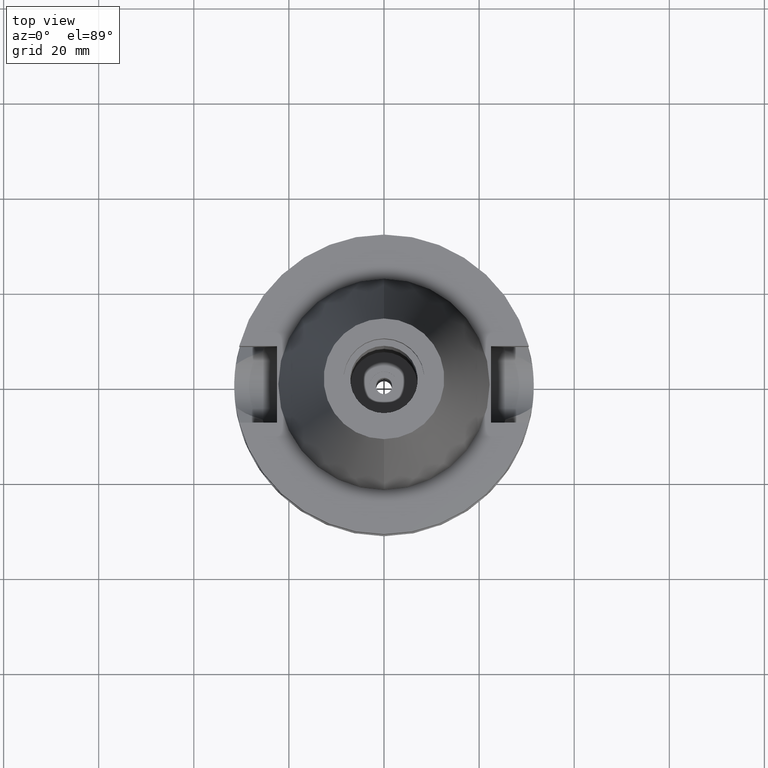
[diagram: clean part render]
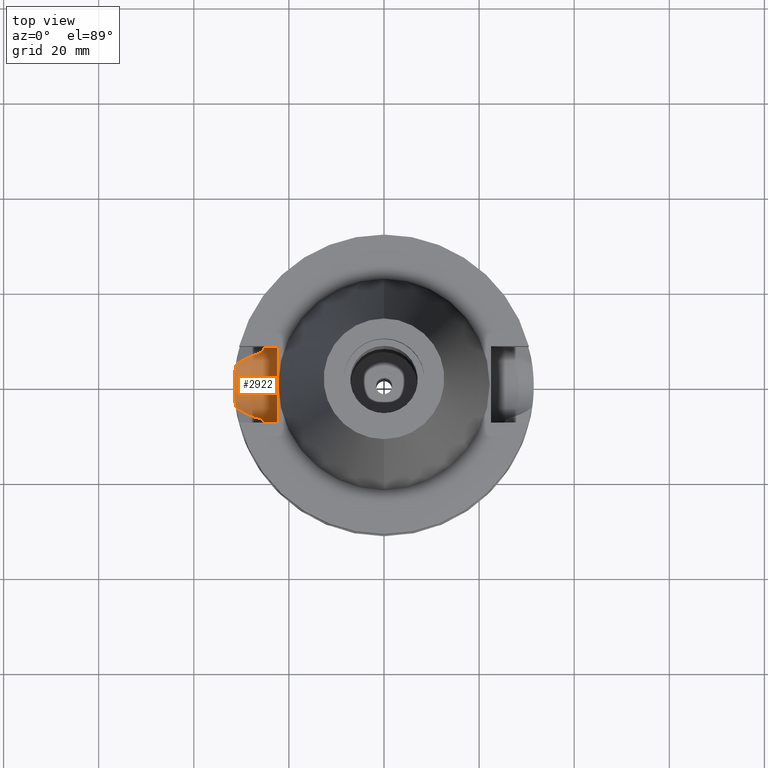
[diagram: same view with one face highlighted and labeled with its STEP entity id]
A machine part, top view. The second image highlights one B-rep face of the part: STEP entity #2922.
In plain terms, the highlighted cylindrical surface (partial cylindrical patch) has radius 8.05 mm, axis along (-1, 0, 0).
Its self-contained STEP definition (entity closure, byte-faithful):
#59 = CARTESIAN_POINT ( 'NONE',  ( -25.43785506100059379, 7.435618734365219140, -18.11648669958635693 ) ) ;
#126 = CARTESIAN_POINT ( 'NONE',  ( -31.17899877608999759, 4.485536235554000051, -21.63449434733000132 ) ) ;
#201 = CYLINDRICAL_SURFACE ( 'NONE', #2626, 8.050000000000000711 ) ;
#253 = CARTESIAN_POINT ( 'NONE',  ( -25.35407699156058570, -7.708962562372580152, -17.26964265289514344 ) ) ;
#286 = CARTESIAN_POINT ( 'NONE',  ( -25.28048191953834234, 7.947027004681899598, -16.24409354915845327 ) ) ;
#298 = EDGE_CURVE ( 'NONE', #2002, #773, #758, .T. ) ;
#338 = CARTESIAN_POINT ( 'NONE',  ( -31.41895388234278030, -2.258557297392488561, -22.67674196858702373 ) ) ;
#348 = VERTEX_POINT ( 'NONE', #1624 ) ;
#369 = CARTESIAN_POINT ( 'NONE',  ( -31.17899877608999759, -4.485536235554000051, -21.63449434733000132 ) ) ;
#388 = CARTESIAN_POINT ( 'NONE',  ( -31.28475554409357429, -3.750420082858365145, -22.12778373751357108 ) ) ;
#398 = CARTESIAN_POINT ( 'NONE',  ( -26.77112999246767089, 6.727844636446459248, -19.38408948532941523 ) ) ;
#409 = CARTESIAN_POINT ( 'NONE',  ( -25.27267878703948156, -7.973310748594792940, -16.24511349491563195 ) ) ;
#410 = EDGE_CURVE ( 'NONE', #348, #543, #1621, .T. ) ;
#440 = CARTESIAN_POINT ( 'NONE',  ( -25.48480250143031967, -7.266743887089764264, -18.43210847756382620 ) ) ;
#458 = EDGE_CURVE ( 'NONE', #1525, #1538, #942, .T. ) ;
#491 = EDGE_LOOP ( 'NONE', ( #2022, #594, #2235, #1987, #1033, #2475, #2879, #499 ) ) ;
#494 = CARTESIAN_POINT ( 'NONE',  ( -22.50000000000000000, -8.050000000000000711, -14.94999999999999929 ) ) ;
#499 = ORIENTED_EDGE ( 'NONE', *, *, #2439, .T. ) ;
#541 = CARTESIAN_POINT ( 'NONE',  ( -31.41630068311782864, -2.294990303378269036, -22.66593676115086708 ) ) ;
#543 = VERTEX_POINT ( 'NONE', #2399 ) ;
#561 = CARTESIAN_POINT ( 'NONE',  ( -27.60223315855615311, 6.420112284713082040, -19.80955697627818068 ) ) ;
#578 = CARTESIAN_POINT ( 'NONE',  ( -31.36267722272215153, -3.014176567370535409, -22.44730567392890563 ) ) ;
#594 = ORIENTED_EDGE ( 'NONE', *, *, #298, .F. ) ;
#621 = CARTESIAN_POINT ( 'NONE',  ( -29.75956350779681614, 5.446258309254174534, -20.91153942557181722 ) ) ;
#633 = CARTESIAN_POINT ( 'NONE',  ( -25.34383784690667696, -7.742464100974354224, -17.15621186859764791 ) ) ;
#698 = CARTESIAN_POINT ( 'NONE',  ( -25.39160756133994923, -7.584934398586919535, -17.65162641215484385 ) ) ;
#701 = CARTESIAN_POINT ( 'NONE',  ( -28.88524288976436694, -5.864049789222075759, -20.46505538983537420 ) ) ;
#716 = CARTESIAN_POINT ( 'NONE',  ( -28.91242282909650996, -5.850962886096426452, -20.47893493730233061 ) ) ;
#729 = VERTEX_POINT ( 'NONE', #853 ) ;
#743 = CARTESIAN_POINT ( 'NONE',  ( -25.31202244740001461, 7.845715351188225384, -16.75285925644253382 ) ) ;
#758 = LINE ( 'NONE', #494, #1226 ) ;
#773 = VERTEX_POINT ( 'NONE', #1082 ) ;
#783 = CARTESIAN_POINT ( 'NONE',  ( -31.43649054899053752, -2.003082981858939071, -22.74794518897322959 ) ) ;
#800 = CARTESIAN_POINT ( 'NONE',  ( -28.82793328317605841, 5.891435027629238874, -20.43578919949460015 ) ) ;
#802 = CARTESIAN_POINT ( 'NONE',  ( -31.46164955142647557, -1.563742733635596682, -22.84919402122184451 ) ) ;
#826 = B_SPLINE_CURVE_WITH_KNOTS ( 'NONE', 3,
 ( #2863, #2403, #398, #561, #1254, #1300, #2905, #841, #827, #2184, #800, #621, #1707, #2880 ),
 .UNSPECIFIED., .F., .F.,
 ( 4, 2, 2, 1, 1, 2, 2, 4 ),
 ( 0.0000000000000000000, 0.2499999999999975020, 0.3749999999999953926, 0.4374999999999942268, 0.4687499999999940603, 0.4843749999999936717, 0.4999999999999932832, 1.000000000000000000 ),
 .UNSPECIFIED. ) ;
#827 = CARTESIAN_POINT ( 'NONE',  ( -28.73866631008889172, 5.933555885267105090, -20.39020535222334374 ) ) ;
#841 = CARTESIAN_POINT ( 'NONE',  ( -28.64964551353900291, 5.975128190573732567, -20.34474781795773168 ) ) ;
#842 = CARTESIAN_POINT ( 'NONE',  ( -31.41200430603704419, 2.353176799736203417, -22.64842219027119796 ) ) ;
#853 = CARTESIAN_POINT ( 'NONE',  ( -22.50000000000000000, 8.050000000000000711, -14.94999999999999929 ) ) ;
#855 = DIRECTION ( 'NONE',  ( 1.000000000000000000, 1.551559937893000172E-14, -3.878899844733000253E-14 ) ) ;
#870 = CARTESIAN_POINT ( 'NONE',  ( -28.96838395272100897, -5.823826998887904338, -20.50751089269507332 ) ) ;
#900 = CARTESIAN_POINT ( 'NONE',  ( -25.32840181445836336, -7.792653841590518660, -16.96926092298874877 ) ) ;
#929 = CARTESIAN_POINT ( 'NONE',  ( -30.50155190454348286, -4.970400189524918133, -21.28962493449650495 ) ) ;
#942 = B_SPLINE_CURVE_WITH_KNOTS ( 'NONE', 3,
 ( #126, #2907, #2387, #1227, #2652, #1512, #998, #1255, #1042, #2667, #842, #1476, #1487, #2864, #2609, #2849, #802, #2187, #783, #1980, #338, #541, #1012, #2638, #578, #388, #369 ),
 .UNSPECIFIED., .F., .F.,
 ( 4, 2, 2, 1, 1, 2, 2, 2, 2, 2, 1, 1, 1, 2, 2, 4 ),
 ( 0.0000000000000000000, 0.1249999999999950040, 0.1874999999999926170, 0.2187499999999914235, 0.2343749999999908962, 0.2421874999999908684, 0.2499999999999908407, 0.4999999999999911182, 0.6249999999999912292, 0.6874999999999912292, 0.7187499999999912292, 0.7343749999999912292, 0.7421874999999913403, 0.7460937499999912292, 0.7499999999999912292, 1.000000000000000000 ),
 .UNSPECIFIED. ) ;
#998 = CARTESIAN_POINT ( 'NONE',  ( -31.39031131250037632, 2.628187298177331321, -22.55983422596495558 ) ) ;
#1012 = CARTESIAN_POINT ( 'NONE',  ( -31.41451779209811335, -2.319272271068230307, -22.65867282528799365 ) ) ;
#1033 = ORIENTED_EDGE ( 'NONE', *, *, #410, .T. ) ;
#1042 = CARTESIAN_POINT ( 'NONE',  ( -31.40736225804058179, 2.414206323995708114, -22.62949227797459528 ) ) ;
#1082 = CARTESIAN_POINT ( 'NONE',  ( -25.24772266958000344, -8.050000000000000711, -14.94999999999999929 ) ) ;
#1086 = CARTESIAN_POINT ( 'NONE',  ( -22.50000000000000000, 1.807578675540999863E-14, -14.94999999999999929 ) ) ;
#1151 = CARTESIAN_POINT ( 'NONE',  ( -27.92297817181045616, -6.323860996111284827, -19.97365869979384456 ) ) ;
#1154 = CARTESIAN_POINT ( 'NONE',  ( -25.31950540107353120, 7.821502334283406022, -16.85447843441894022 ) ) ;
#1181 = B_SPLINE_CURVE_WITH_KNOTS ( 'NONE', 3,
 ( #1555, #440, #1350, #698, #2042, #253, #633, #2473, #900, #1804, #2519, #409, #2060, #2747 ),
 .UNSPECIFIED., .F., .F.,
 ( 4, 2, 2, 1, 1, 2, 2, 4 ),
 ( 0.0000000000000000000, 0.2499999999999841238, 0.3749999999999763522, 0.4374999999999725775, 0.4687499999999721889, 0.4843749999999718558, 0.4999999999999715783, 1.000000000000000000 ),
 .UNSPECIFIED. ) ;
#1197 = CARTESIAN_POINT ( 'NONE',  ( -25.25396252671492547, 8.030902051885153270, -15.59367622151629718 ) ) ;
#1207 = AXIS2_PLACEMENT_3D ( 'NONE', #1533, #1493, #2693 ) ;
#1226 = VECTOR ( 'NONE', #2558, 1000.000000000000000 ) ;
#1227 = CARTESIAN_POINT ( 'NONE',  ( -31.33707847192020068, 3.201445230599945457, -22.33871180517444444 ) ) ;
#1254 = CARTESIAN_POINT ( 'NONE',  ( -27.86833083059124405, 6.314653008624818042, -19.94562304237988215 ) ) ;
#1255 = CARTESIAN_POINT ( 'NONE',  ( -31.40242035844687507, 2.478036592740717747, -22.60933024864149843 ) ) ;
#1262 = EDGE_CURVE ( 'NONE', #2002, #729, #2764, .T. ) ;
#1300 = CARTESIAN_POINT ( 'NONE',  ( -28.25107226365223312, 6.153143549582654970, -20.14119181965494221 ) ) ;
#1317 = DIRECTION ( 'NONE',  ( 0.0000000000000000000, 0.0000000000000000000, -1.000000000000000000 ) ) ;
#1338 = CARTESIAN_POINT ( 'NONE',  ( -29.24427992715143887, -5.686977808534088297, -20.64837969820500874 ) ) ;
#1350 = CARTESIAN_POINT ( 'NONE',  ( -25.44389776528783997, -7.408340107185043877, -18.11686868422951591 ) ) ;
#1389 = CARTESIAN_POINT ( 'NONE',  ( -25.31648297027380679, 7.831286608423163820, -16.81383661545202557 ) ) ;
#1434 = CARTESIAN_POINT ( 'NONE',  ( -25.53175183775000079, 7.097862220092999941, -18.74774300138999905 ) ) ;
#1476 = CARTESIAN_POINT ( 'NONE',  ( -31.47150441655300313, 1.550750679856411018, -22.89093377991047973 ) ) ;
#1487 = CARTESIAN_POINT ( 'NONE',  ( -31.50023391467116696, 0.7573065430390963915, -23.00092412718315771 ) ) ;
#1493 = DIRECTION ( 'NONE',  ( 1.000000000000000000, 0.0000000000000000000, 0.0000000000000000000 ) ) ;
#1512 = CARTESIAN_POINT ( 'NONE',  ( -31.37894136415564361, 2.758863631449552045, -22.51306821944813308 ) ) ;
#1525 = VERTEX_POINT ( 'NONE', #2054 ) ;
#1533 = CARTESIAN_POINT ( 'NONE',  ( -22.50000000000000000, 1.807578675540999863E-14, -14.94999999999999929 ) ) ;
#1538 = VERTEX_POINT ( 'NONE', #2812 ) ;
#1555 = CARTESIAN_POINT ( 'NONE',  ( -25.53175183775000079, -7.097862220092999941, -18.74774300138999905 ) ) ;
#1560 = CARTESIAN_POINT ( 'NONE',  ( -29.05194728554237926, -5.783008553314025413, -20.55018035364695450 ) ) ;
#1616 = CARTESIAN_POINT ( 'NONE',  ( -22.50000000000000000, -8.050000000000000711, -14.94999999999999929 ) ) ;
#1621 = B_SPLINE_CURVE_WITH_KNOTS ( 'NONE', 3,
 ( #1635, #2080, #1197, #2568, #286, #2113, #2363, #743, #1389, #1154, #2374, #1882, #59, #1434 ),
 .UNSPECIFIED., .F., .F.,
 ( 4, 2, 2, 1, 1, 2, 2, 4 ),
 ( 0.0000000000000000000, 0.2500000000000162648, 0.3750000000000237033, 0.4375000000000274225, 0.4687500000000292544, 0.4843750000000290878, 0.5000000000000288658, 1.000000000000000000 ),
 .UNSPECIFIED. ) ;
#1624 = CARTESIAN_POINT ( 'NONE',  ( -25.24772266958000344, 8.050000000000000711, -14.94999999999999929 ) ) ;
#1635 = CARTESIAN_POINT ( 'NONE',  ( -25.24772266958000344, 8.050000000000000711, -14.94999999999999929 ) ) ;
#1707 = CARTESIAN_POINT ( 'NONE',  ( -30.53384159912549123, 4.974996757369593681, -21.30604872491261048 ) ) ;
#1804 = CARTESIAN_POINT ( 'NONE',  ( -25.32546100062923244, -7.802196480338689177, -16.93206928540737621 ) ) ;
#1807 = CARTESIAN_POINT ( 'NONE',  ( -31.17899877608999759, -4.485536235554000051, -21.63449434733000132 ) ) ;
#1821 = CARTESIAN_POINT ( 'NONE',  ( -29.40459624571778363, -5.603365294512689054, -20.73021001072212854 ) ) ;
#1841 = CARTESIAN_POINT ( 'NONE',  ( -26.81486766677489086, -6.745155665766620956, -19.40694045782684540 ) ) ;
#1844 = VECTOR ( 'NONE', #855, 1000.000000000000000 ) ;
#1882 = CARTESIAN_POINT ( 'NONE',  ( -25.36813810015027926, 7.663837995223238941, -17.48799049447513454 ) ) ;
#1980 = CARTESIAN_POINT ( 'NONE',  ( -31.42499671940193195, -2.173479871769994354, -22.70131995672827330 ) ) ;
#1987 = ORIENTED_EDGE ( 'NONE', *, *, #2761, .F. ) ;
#2002 = VERTEX_POINT ( 'NONE', #1616 ) ;
#2022 = ORIENTED_EDGE ( 'NONE', *, *, #2938, .T. ) ;
#2030 = CARTESIAN_POINT ( 'NONE',  ( -30.85641838523861580, -4.730267863858727218, -21.47027061855044749 ) ) ;
#2042 = CARTESIAN_POINT ( 'NONE',  ( -25.37568864340162733, -7.637841086874976426, -17.49779646604959638 ) ) ;
#2046 = CARTESIAN_POINT ( 'NONE',  ( -29.92082304873514431, -5.319849587186610052, -20.99359214029538023 ) ) ;
#2054 = CARTESIAN_POINT ( 'NONE',  ( -31.17899877608999759, 4.485536235554000051, -21.63449434733000132 ) ) ;
#2060 = CARTESIAN_POINT ( 'NONE',  ( -25.24772266957999989, -8.049999999999979394, -15.58990582805522784 ) ) ;
#2080 = CARTESIAN_POINT ( 'NONE',  ( -25.24772266958000699, 8.050000000000018474, -15.26995863568740397 ) ) ;
#2112 = CARTESIAN_POINT ( 'NONE',  ( -25.53175183775000079, -7.097862220092999941, -18.74774300138999905 ) ) ;
#2113 = CARTESIAN_POINT ( 'NONE',  ( -25.29452159809190093, 7.902075829211898217, -16.48836005901232937 ) ) ;
#2184 = CARTESIAN_POINT ( 'NONE',  ( -28.79767173539316971, 5.905788870252578704, -20.42033614487703730 ) ) ;
#2187 = CARTESIAN_POINT ( 'NONE',  ( -31.44532781230133978, -1.856703196141146206, -22.78359225527571041 ) ) ;
#2218 = LINE ( 'NONE', #2925, #1844 ) ;
#2235 = ORIENTED_EDGE ( 'NONE', *, *, #1262, .T. ) ;
#2252 = FACE_OUTER_BOUND ( 'NONE', #491, .T. ) ;
#2359 = B_SPLINE_CURVE_WITH_KNOTS ( 'NONE', 3,
 ( #1807, #2030, #929, #2046, #2508, #1821, #1338, #1560, #870, #716, #701, #1151, #1841, #2716 ),
 .UNSPECIFIED., .F., .F.,
 ( 4, 2, 2, 1, 1, 2, 2, 4 ),
 ( 0.0000000000000000000, 0.2500000000000127676, 0.3750000000000191513, 0.4375000000000219824, 0.4687500000000224265, 0.4843750000000223710, 0.5000000000000222045, 1.000000000000000000 ),
 .UNSPECIFIED. ) ;
#2363 = CARTESIAN_POINT ( 'NONE',  ( -25.30212642397509626, 7.877652634765773598, -16.61049091562633961 ) ) ;
#2374 = CARTESIAN_POINT ( 'NONE',  ( -25.32117791941933405, 7.816083715568992396, -16.87657725263354180 ) ) ;
#2387 = CARTESIAN_POINT ( 'NONE',  ( -31.27838846380920401, 3.744638241579207882, -22.08718706897359496 ) ) ;
#2399 = CARTESIAN_POINT ( 'NONE',  ( -25.53175183775000079, 7.097862220092999941, -18.74774300138999905 ) ) ;
#2403 = CARTESIAN_POINT ( 'NONE',  ( -26.17331434843100979, 6.921507679525881862, -19.07734409086868865 ) ) ;
#2439 = EDGE_CURVE ( 'NONE', #1538, #2571, #2359, .T. ) ;
#2473 = CARTESIAN_POINT ( 'NONE',  ( -25.33288387036036582, -7.778102131033523214, -17.02514599129639095 ) ) ;
#2475 = ORIENTED_EDGE ( 'NONE', *, *, #2822, .T. ) ;
#2508 = CARTESIAN_POINT ( 'NONE',  ( -29.71917524100477337, -5.434537562766008634, -20.89074263422444133 ) ) ;
#2519 = CARTESIAN_POINT ( 'NONE',  ( -25.32415077929965719, -7.806445795312396463, -16.91528421260447601 ) ) ;
#2558 = DIRECTION ( 'NONE',  ( -1.000000000000000000, 1.616208268639000174E-14, -1.357614945656000126E-14 ) ) ;
#2568 = CARTESIAN_POINT ( 'NONE',  ( -25.27268209811968092, 7.971799596722143555, -16.08124396174321902 ) ) ;
#2571 = VERTEX_POINT ( 'NONE', #2112 ) ;
#2609 = CARTESIAN_POINT ( 'NONE',  ( -31.49254817246029248, -0.7824343147901510198, -22.97160126998537422 ) ) ;
#2626 = AXIS2_PLACEMENT_3D ( 'NONE', #1086, #2762, #1317 ) ;
#2638 = CARTESIAN_POINT ( 'NONE',  ( -31.41354641493283850, -2.332384000909593080, -22.65471317283183339 ) ) ;
#2652 = CARTESIAN_POINT ( 'NONE',  ( -31.35488044599294000, 3.022543740769425114, -22.41338040374337481 ) ) ;
#2667 = CARTESIAN_POINT ( 'NONE',  ( -31.41060181520833439, 2.371771208670037989, -22.64270402108492775 ) ) ;
#2693 = DIRECTION ( 'NONE',  ( 0.0000000000000000000, 0.0000000000000000000, -1.000000000000000000 ) ) ;
#2716 = CARTESIAN_POINT ( 'NONE',  ( -25.53175183775000079, -7.097862220092999941, -18.74774300138999905 ) ) ;
#2747 = CARTESIAN_POINT ( 'NONE',  ( -25.24772266958000344, -8.050000000000000711, -14.94999999999999929 ) ) ;
#2761 = EDGE_CURVE ( 'NONE', #348, #729, #2218, .T. ) ;
#2762 = DIRECTION ( 'NONE',  ( -1.000000000000000000, 0.0000000000000000000, 0.0000000000000000000 ) ) ;
#2764 = CIRCLE ( 'NONE', #1207, 8.050000000000000711 ) ;
#2812 = CARTESIAN_POINT ( 'NONE',  ( -31.17899877608999759, -4.485536235554000051, -21.63449434733000132 ) ) ;
#2822 = EDGE_CURVE ( 'NONE', #543, #1525, #826, .T. ) ;
#2849 = CARTESIAN_POINT ( 'NONE',  ( -31.47072699418135855, -1.368170334988792369, -22.88533600626682585 ) ) ;
#2863 = CARTESIAN_POINT ( 'NONE',  ( -25.53175183775000079, 7.097862220092999941, -18.74774300138999905 ) ) ;
#2864 = CARTESIAN_POINT ( 'NONE',  ( -31.49988075799867815, -0.3932938145206764657, -22.99952906081512083 ) ) ;
#2879 = ORIENTED_EDGE ( 'NONE', *, *, #458, .T. ) ;
#2880 = CARTESIAN_POINT ( 'NONE',  ( -31.17899877608999759, 4.485536235554000051, -21.63449434733000132 ) ) ;
#2905 = CARTESIAN_POINT ( 'NONE',  ( -28.43834171143483047, 6.071557694430198993, -20.23684504811738094 ) ) ;
#2907 = CARTESIAN_POINT ( 'NONE',  ( -31.23221634387812529, 4.115620489982826591, -21.88272112330849239 ) ) ;
#2922 = ADVANCED_FACE ( 'NONE', ( #2252 ), #201, .F. ) ;
#2925 = CARTESIAN_POINT ( 'NONE',  ( -25.24772266958000344, 8.050000000000000711, -14.94999999999999929 ) ) ;
#2938 = EDGE_CURVE ( 'NONE', #2571, #773, #1181, .T. ) ;